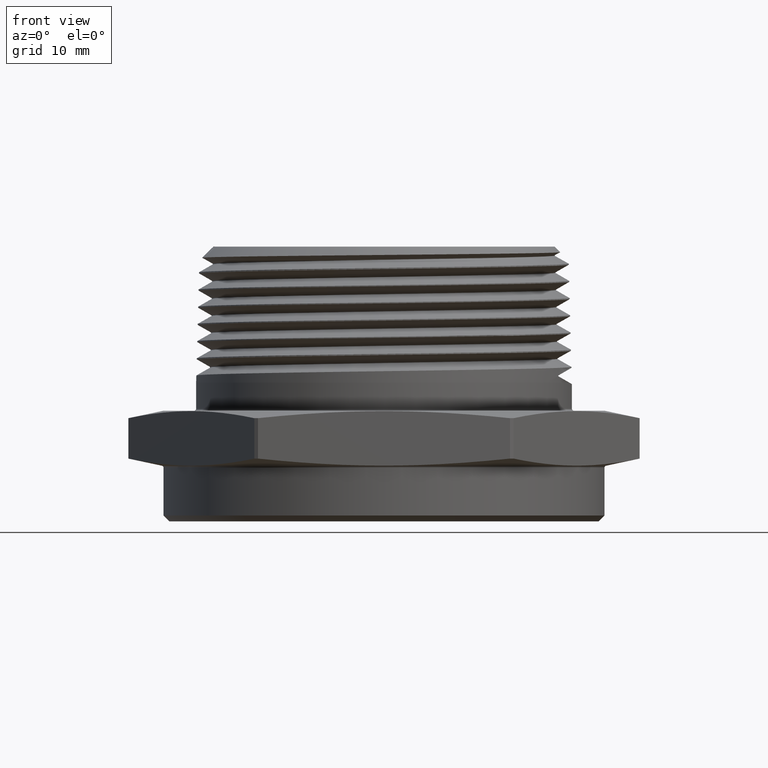
[diagram: clean part render]
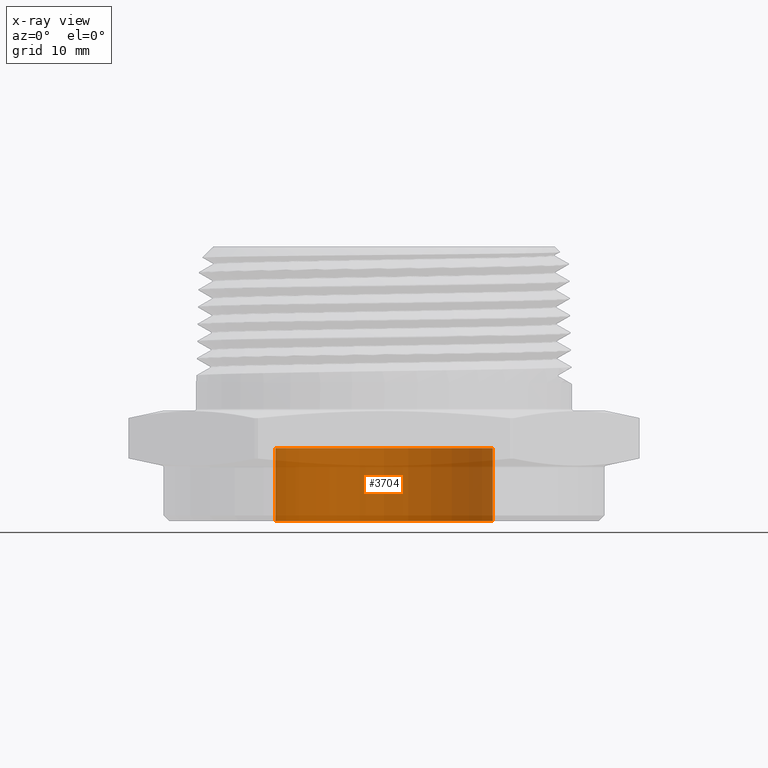
[diagram: x-ray — body ghosted, one internal face saturated and labeled with its STEP entity id]
A machine part, front view, then the same camera in x-ray: the body is ghosted and one INTERNAL B-rep face — a face not visible from any outside direction — is saturated and labeled: STEP entity #3704.
In plain terms, the highlighted cylindrical surface (partial cylindrical patch) has radius 13.97 mm, axis along (-0, -0, -1).
Its self-contained STEP definition (entity closure, byte-faithful):
#4 = EDGE_LOOP ( 'NONE', ( #3029, #3030, #3031, #3032 ) ) ;
#1771 = DIRECTION ( 'NONE',  ( -0.0000000000000000000, -0.0000000000000000000, -1.000000000000000000 ) ) ;
#1772 = DIRECTION ( 'NONE',  ( -1.000000000000000000, 0.0000000000000000000, 0.0000000000000000000 ) ) ;
#1775 = CARTESIAN_POINT ( 'NONE',  ( 0.0000000000000000000, 0.0000000000000000000, 0.3700000000000000000 ) ) ;
#1911 = DIRECTION ( 'NONE',  ( -0.0000000000000000000, -0.0000000000000000000, -1.000000000000000000 ) ) ;
#1912 = CARTESIAN_POINT ( 'NONE',  ( 0.0000000000000000000, 0.0000000000000000000, 0.3700000000000000000 ) ) ;
#1913 = DIRECTION ( 'NONE',  ( 0.0000000000000000000, 0.0000000000000000000, 1.000000000000000000 ) ) ;
#1914 = DIRECTION ( 'NONE',  ( 1.000000000000000000, 0.0000000000000000000, 0.0000000000000000000 ) ) ;
#1915 = CARTESIAN_POINT ( 'NONE',  ( -0.5500000000000000400, 0.0000000000000000000, 0.3700000000000000000 ) ) ;
#1916 = CARTESIAN_POINT ( 'NONE',  ( 0.0000000000000000000, 0.0000000000000000000, 0.0000000000000000000 ) ) ;
#1917 = DIRECTION ( 'NONE',  ( 0.0000000000000000000, 0.0000000000000000000, 1.000000000000000000 ) ) ;
#1918 = DIRECTION ( 'NONE',  ( 1.000000000000000000, 0.0000000000000000000, 0.0000000000000000000 ) ) ;
#2799 = VERTEX_POINT ( 'NONE', #6581 ) ;
#2800 = VERTEX_POINT ( 'NONE', #5727 ) ;
#2801 = VERTEX_POINT ( 'NONE', #6108 ) ;
#2804 = VERTEX_POINT ( 'NONE', #6111 ) ;
#3029 = ORIENTED_EDGE ( 'NONE', *, *, #4599, .F. ) ;
#3030 = ORIENTED_EDGE ( 'NONE', *, *, #5413, .T. ) ;
#3031 = ORIENTED_EDGE ( 'NONE', *, *, #4600, .T. ) ;
#3032 = ORIENTED_EDGE ( 'NONE', *, *, #4601, .F. ) ;
#3171 = FACE_OUTER_BOUND ( 'NONE', #4, .T. ) ;
#3174 = CYLINDRICAL_SURFACE ( 'NONE', #4626, 0.5500000000000000400 ) ;
#3215 = CIRCLE ( 'NONE', #4666, 0.5500000000000000400 ) ;
#3243 = LINE ( 'NONE', #1915, #3250 ) ;
#3247 = CIRCLE ( 'NONE', #4669, 0.5500000000000000400 ) ;
#3250 = VECTOR ( 'NONE', #1911, 39.37007874015748100 ) ;
#3704 = ADVANCED_FACE ( 'NONE', ( #3171 ), #3174, .T. ) ;
#4599 = EDGE_CURVE ( 'NONE', #2804, #2801, #3215, .T. ) ;
#4600 = EDGE_CURVE ( 'NONE', #2800, #2799, #3247, .T. ) ;
#4601 = EDGE_CURVE ( 'NONE', #2801, #2799, #3243, .T. ) ;
#4626 = AXIS2_PLACEMENT_3D ( 'NONE', #1775, #1771, #1772 ) ;
#4666 = AXIS2_PLACEMENT_3D ( 'NONE', #1912, #1913, #1914 ) ;
#4669 = AXIS2_PLACEMENT_3D ( 'NONE', #1916, #1917, #1918 ) ;
#5007 = CARTESIAN_POINT ( 'NONE',  ( 0.5500000000000000400, 6.735557395310443700E-017, 0.3700000000000000000 ) ) ;
#5009 = DIRECTION ( 'NONE',  ( -0.0000000000000000000, -0.0000000000000000000, -1.000000000000000000 ) ) ;
#5413 = EDGE_CURVE ( 'NONE', #2804, #2800, #7589, .T. ) ;
#5727 = CARTESIAN_POINT ( 'NONE',  ( 0.5500000000000000400, 6.735557395310443700E-017, 0.0000000000000000000 ) ) ;
#6108 = CARTESIAN_POINT ( 'NONE',  ( -0.5500000000000000400, 0.0000000000000000000, 0.3700000000000000000 ) ) ;
#6111 = CARTESIAN_POINT ( 'NONE',  ( 0.5500000000000000400, 6.735557395310443700E-017, 0.3700000000000000000 ) ) ;
#6581 = CARTESIAN_POINT ( 'NONE',  ( -0.5500000000000000400, 0.0000000000000000000, 0.0000000000000000000 ) ) ;
#7589 = LINE ( 'NONE', #5007, #7592 ) ;
#7592 = VECTOR ( 'NONE', #5009, 39.37007874015748100 ) ;